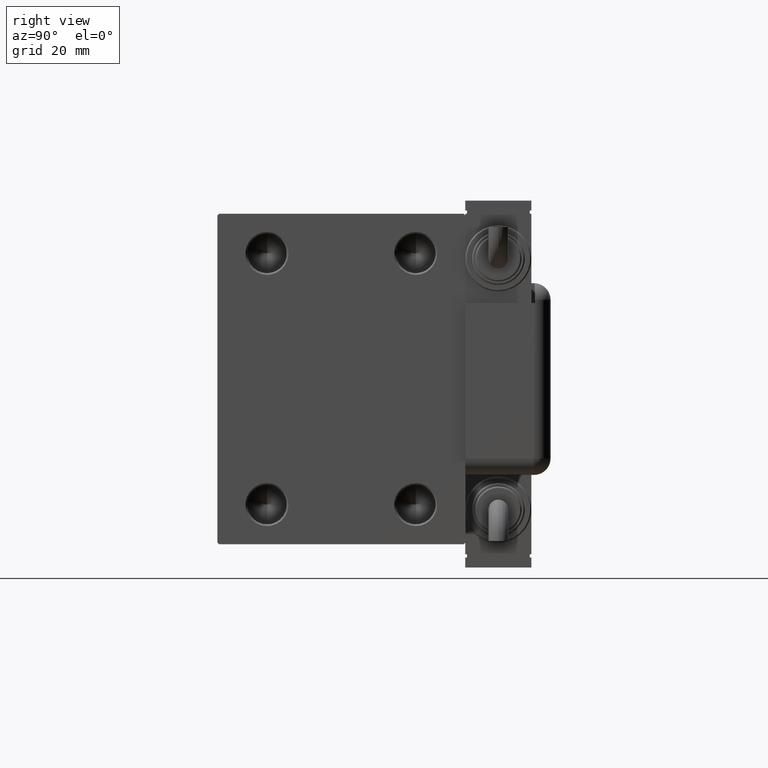
[diagram: clean part render]
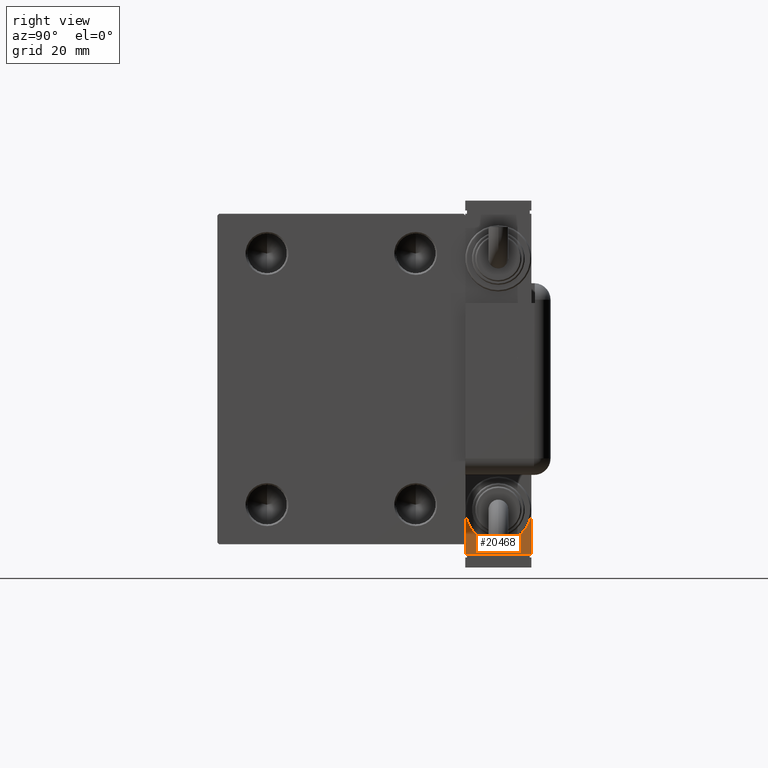
[diagram: same view with one face highlighted and labeled with its STEP entity id]
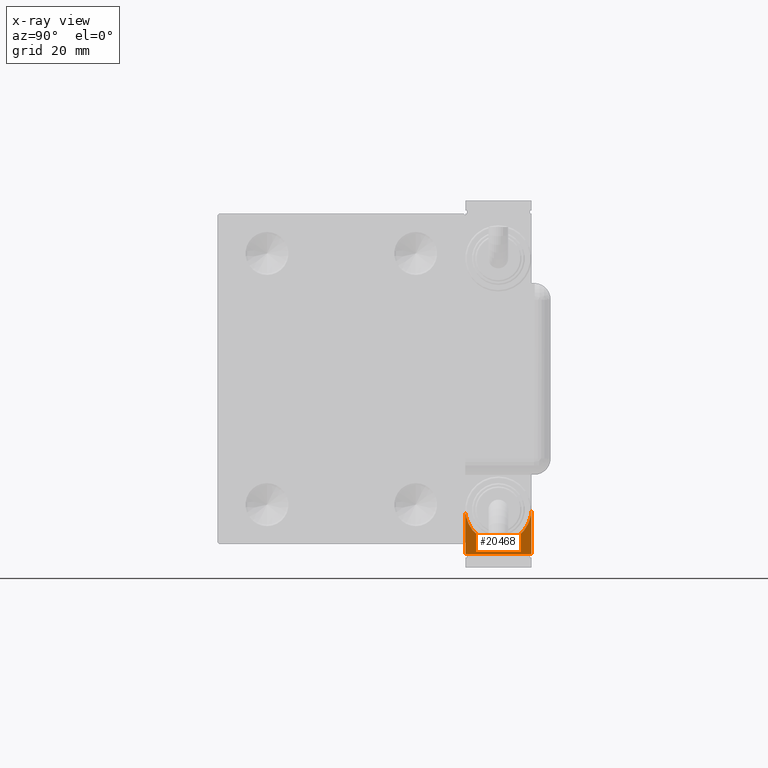
[diagram: x-ray of the same camera — body ghosted, the highlighted face saturated]
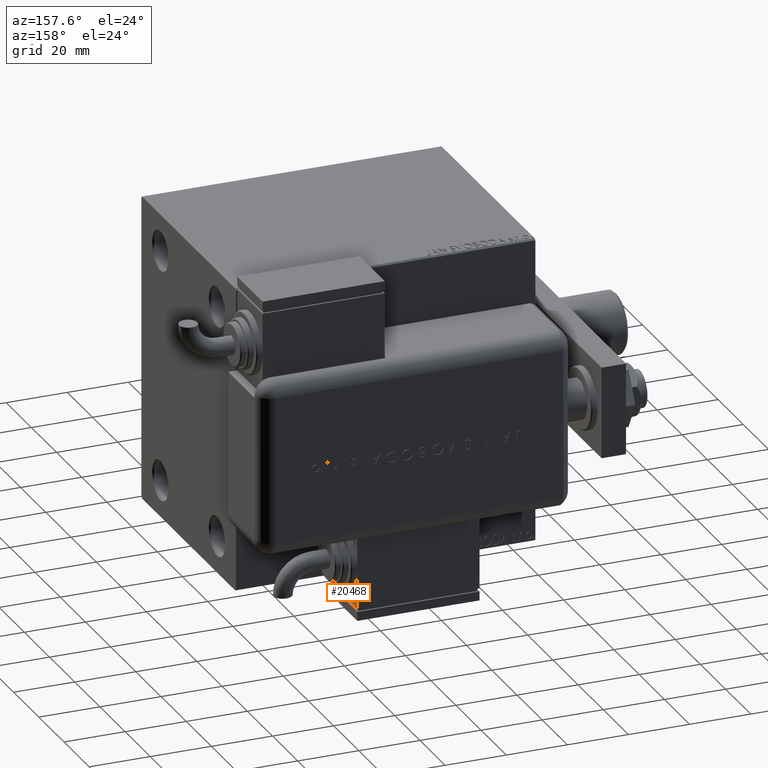
[diagram: same view with one face highlighted and labeled with its STEP entity id]
A machine part, right view. The second image highlights one B-rep face of the part: STEP entity #20468.
The next image is the same camera in x-ray: the body ghosted, the highlighted face saturated — about 0% of this face is hidden behind the body in this view.
A second angle (auxiliary view) of the same face is appended — the face is thin or edge-on in the first view.
In plain terms, the highlighted planar face has unit normal (-1, 0, 0).
Its self-contained STEP definition (entity closure, byte-faithful):
#2128 = EDGE_CURVE ( 'NONE', #5233, #5326, #18143, .T. ) ;
#2239 = DIRECTION ( 'NONE',  ( 0.000000000000000000, -1.000000000000000000, 0.000000000000000000 ) ) ;
#4370 = ORIENTED_EDGE ( 'NONE', *, *, #52103, .F. ) ;
#5233 = VERTEX_POINT ( 'NONE', #56728 ) ;
#5326 = VERTEX_POINT ( 'NONE', #10671 ) ;
#7028 = VECTOR ( 'NONE', #54798, 1000.000000000000000 ) ;
#7067 = ORIENTED_EDGE ( 'NONE', *, *, #15455, .F. ) ;
#8034 = LINE ( 'NONE', #53783, #11268 ) ;
#10671 = CARTESIAN_POINT ( 'NONE',  ( -19.99999999999993960, 2.569960705150834076E-15, 10.00000000000000000 ) ) ;
#11268 = VECTOR ( 'NONE', #35064, 1000.000000000000000 ) ;
#12040 = AXIS2_PLACEMENT_3D ( 'NONE', #38404, #57128, #14152 ) ;
#12049 = ORIENTED_EDGE ( 'NONE', *, *, #2128, .F. ) ;
#14152 = DIRECTION ( 'NONE',  ( 0.000000000000000000, -1.000000000000000000, 0.000000000000000000 ) ) ;
#15455 = EDGE_CURVE ( 'NONE', #5326, #26364, #50489, .T. ) ;
#16070 = ORIENTED_EDGE ( 'NONE', *, *, #54191, .T. ) ;
#17021 = CARTESIAN_POINT ( 'NONE',  ( -19.99999999999994316, -13.49999999999996092, 10.00000000000000000 ) ) ;
#17649 = CARTESIAN_POINT ( 'NONE',  ( -19.99999999999994316, -13.49999999999996092, 10.00000000000000000 ) ) ;
#18143 = CIRCLE ( 'NONE', #44477, 10.00000000000000000 ) ;
#19013 = VECTOR ( 'NONE', #37944, 1000.000000000000000 ) ;
#19615 = CARTESIAN_POINT ( 'NONE',  ( -19.99999999999994316, -13.49999999999996092, -10.00000000000000000 ) ) ;
#20366 = CARTESIAN_POINT ( 'NONE',  ( -19.99999999999993960, 2.569960705150834076E-15, -9.999999999999996447 ) ) ;
#20468 = ADVANCED_FACE ( 'NONE', ( #54165 ), #58771, .F. ) ;
#20788 = AXIS2_PLACEMENT_3D ( 'NONE', #17021, #49249, #39449 ) ;
#20867 = CIRCLE ( 'NONE', #12040, 10.00000000000000000 ) ;
#26364 = VERTEX_POINT ( 'NONE', #26883 ) ;
#26883 = CARTESIAN_POINT ( 'NONE',  ( -19.99999999999994316, -13.49999999999996092, 10.00000000000000000 ) ) ;
#28374 = ORIENTED_EDGE ( 'NONE', *, *, #49135, .F. ) ;
#32411 = LINE ( 'NONE', #51139, #19013 ) ;
#35064 = DIRECTION ( 'NONE',  ( -1.284980352575421081E-16, -1.000000000000000000, -0.000000000000000000 ) ) ;
#35684 = DIRECTION ( 'NONE',  ( -1.000000000000000000, 1.284980352575421081E-16, 0.000000000000000000 ) ) ;
#37944 = DIRECTION ( 'NONE',  ( -0.000000000000000000, -0.000000000000000000, -1.000000000000000000 ) ) ;
#38404 = CARTESIAN_POINT ( 'NONE',  ( -19.99999999999993960, 2.569960705150834076E-15, 0.000000000000000000 ) ) ;
#39449 = DIRECTION ( 'NONE',  ( 1.284980352575421081E-16, 1.000000000000000000, 0.000000000000000000 ) ) ;
#43529 = VERTEX_POINT ( 'NONE', #19615 ) ;
#44295 = CARTESIAN_POINT ( 'NONE',  ( -19.99999999999993960, 2.569960705150834076E-15, 0.000000000000000000 ) ) ;
#44477 = AXIS2_PLACEMENT_3D ( 'NONE', #44295, #35684, #2239 ) ;
#49021 = VERTEX_POINT ( 'NONE', #20366 ) ;
#49135 = EDGE_CURVE ( 'NONE', #49021, #5233, #20867, .T. ) ;
#49249 = DIRECTION ( 'NONE',  ( 1.000000000000000000, -1.284980352575421081E-16, 0.000000000000000000 ) ) ;
#50489 = LINE ( 'NONE', #17649, #7028 ) ;
#51139 = CARTESIAN_POINT ( 'NONE',  ( -19.99999999999994316, -13.49999999999996092, 10.00000000000000000 ) ) ;
#52103 = EDGE_CURVE ( 'NONE', #26364, #43529, #32411, .T. ) ;
#53783 = CARTESIAN_POINT ( 'NONE',  ( -19.99999999999994316, -13.49999999999996092, -10.00000000000000000 ) ) ;
#54165 = FACE_OUTER_BOUND ( 'NONE', #56997, .T. ) ;
#54191 = EDGE_CURVE ( 'NONE', #49021, #43529, #8034, .T. ) ;
#54798 = DIRECTION ( 'NONE',  ( -1.284980352575421081E-16, -1.000000000000000000, -0.000000000000000000 ) ) ;
#56728 = CARTESIAN_POINT ( 'NONE',  ( -19.99999999999993960, -9.999999999999998224, 1.224646799147353256E-15 ) ) ;
#56997 = EDGE_LOOP ( 'NONE', ( #28374, #16070, #4370, #7067, #12049 ) ) ;
#57128 = DIRECTION ( 'NONE',  ( -1.000000000000000000, 1.284980352575421081E-16, 0.000000000000000000 ) ) ;
#58771 = PLANE ( 'NONE',  #20788 ) ;